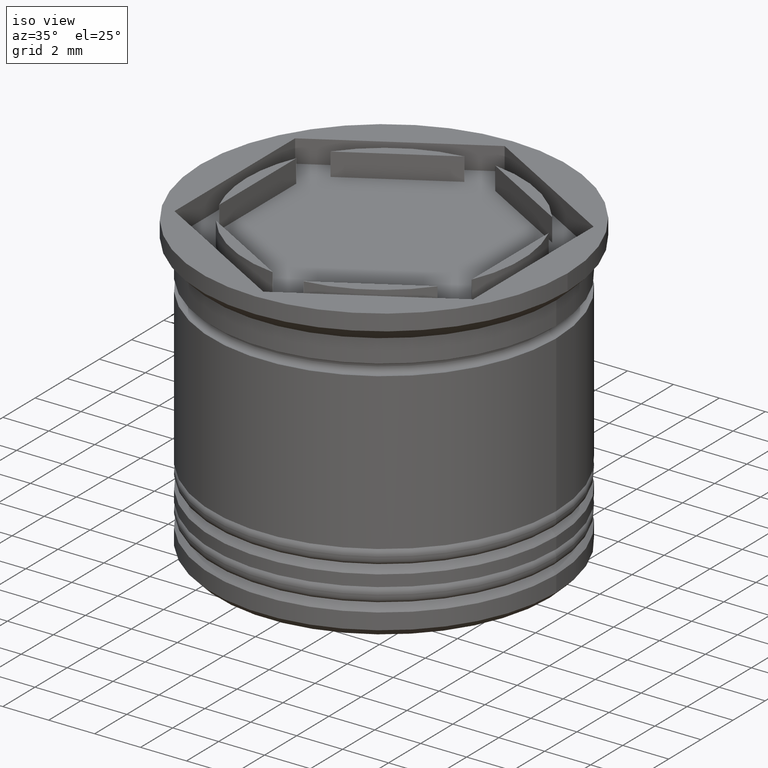
[diagram: clean part render]
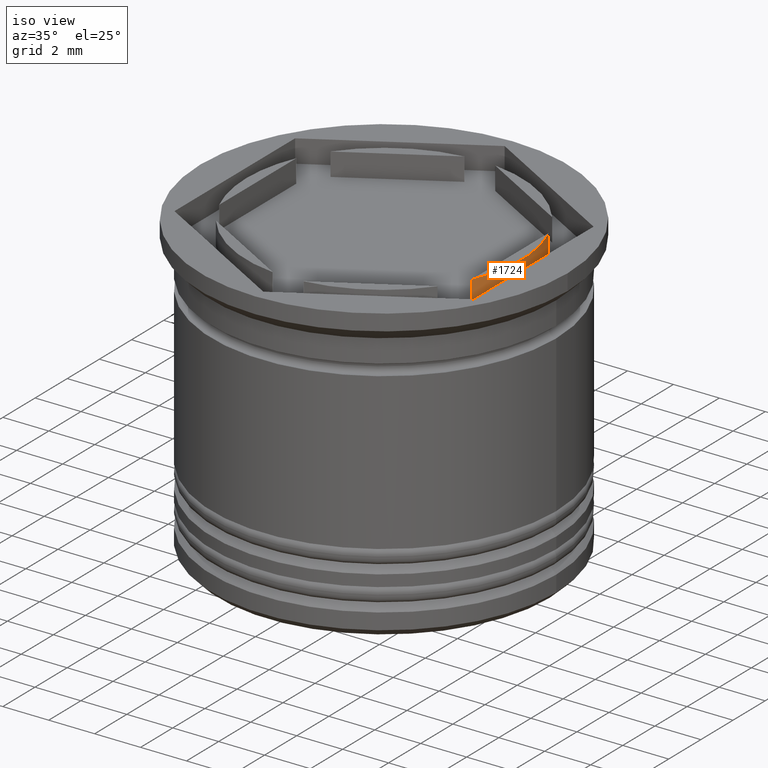
[diagram: same view with one face highlighted and labeled with its STEP entity id]
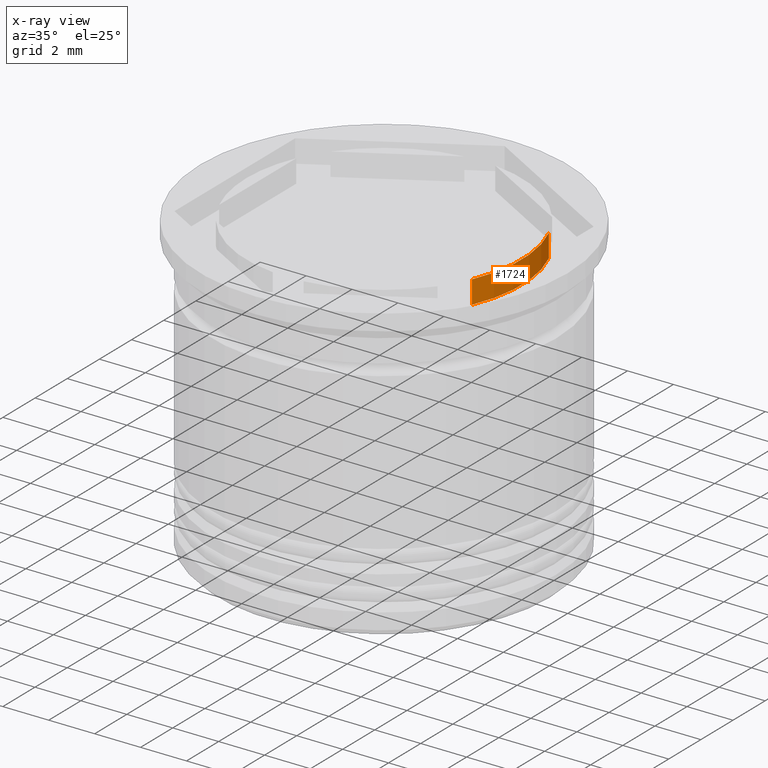
[diagram: x-ray of the same camera — body ghosted, the highlighted face saturated]
A machine part, iso view. The second image highlights one B-rep face of the part: STEP entity #1724.
The next image is the same camera in x-ray: the body ghosted, the highlighted face saturated — about 0% of this face is hidden behind the body in this view.
In plain terms, the highlighted cylindrical surface (partial cylindrical patch) has radius 6 mm, axis along (-0, -0, -1).
Its self-contained STEP definition (entity closure, byte-faithful):
#58 = CARTESIAN_POINT ( 'NONE',  ( 5.500000000000000888, 2.397915761656360445, -1.000000000000000888 ) ) ;
#186 = CARTESIAN_POINT ( 'NONE',  ( 5.500000000000000888, -2.397915761656362221, -1.000000000000000888 ) ) ;
#188 = LINE ( 'NONE', #1139, #1171 ) ;
#191 = EDGE_CURVE ( 'NONE', #322, #525, #188, .T. ) ;
#217 = CARTESIAN_POINT ( 'NONE',  ( 0.000000000000000000, 0.000000000000000000, -1.000000000000000000 ) ) ;
#230 = DIRECTION ( 'NONE',  ( -0.000000000000000000, -0.000000000000000000, 1.000000000000000000 ) ) ;
#284 = AXIS2_PLACEMENT_3D ( 'NONE', #1007, #1916, #716 ) ;
#322 = VERTEX_POINT ( 'NONE', #58 ) ;
#351 = CARTESIAN_POINT ( 'NONE',  ( 5.500000000000000888, -2.397915761656362221, 0.000000000000000000 ) ) ;
#439 = EDGE_LOOP ( 'NONE', ( #1065, #734, #1096, #1849 ) ) ;
#503 = DIRECTION ( 'NONE',  ( 1.000000000000000000, 0.000000000000000000, 0.000000000000000000 ) ) ;
#512 = CARTESIAN_POINT ( 'NONE',  ( 0.000000000000000000, 0.000000000000000000, 0.000000000000000000 ) ) ;
#525 = VERTEX_POINT ( 'NONE', #1160 ) ;
#624 = DIRECTION ( 'NONE',  ( 0.000000000000000000, 0.000000000000000000, 1.000000000000000000 ) ) ;
#681 = FACE_OUTER_BOUND ( 'NONE', #439, .T. ) ;
#696 = EDGE_CURVE ( 'NONE', #1034, #525, #1522, .T. ) ;
#716 = DIRECTION ( 'NONE',  ( -1.000000000000000000, 0.000000000000000000, 0.000000000000000000 ) ) ;
#734 = ORIENTED_EDGE ( 'NONE', *, *, #1897, .T. ) ;
#826 = DIRECTION ( 'NONE',  ( -0.000000000000000000, -0.000000000000000000, -1.000000000000000000 ) ) ;
#834 = AXIS2_PLACEMENT_3D ( 'NONE', #512, #230, #503 ) ;
#893 = VERTEX_POINT ( 'NONE', #186 ) ;
#1007 = CARTESIAN_POINT ( 'NONE',  ( 0.000000000000000000, 0.000000000000000000, 16.97056274847714263 ) ) ;
#1034 = VERTEX_POINT ( 'NONE', #351 ) ;
#1065 = ORIENTED_EDGE ( 'NONE', *, *, #696, .F. ) ;
#1096 = ORIENTED_EDGE ( 'NONE', *, *, #1909, .T. ) ;
#1135 = CIRCLE ( 'NONE', #1458, 6.000000000000000888 ) ;
#1139 = CARTESIAN_POINT ( 'NONE',  ( 5.500000000000000888, 2.397915761656360445, 16.97056274847714263 ) ) ;
#1160 = CARTESIAN_POINT ( 'NONE',  ( 5.500000000000001776, 2.397915761656360445, 0.000000000000000000 ) ) ;
#1171 = VECTOR ( 'NONE', #624, 1000.000000000000000 ) ;
#1185 = CYLINDRICAL_SURFACE ( 'NONE', #284, 6.000000000000000888 ) ;
#1303 = DIRECTION ( 'NONE',  ( 0.000000000000000000, 0.000000000000000000, 1.000000000000000000 ) ) ;
#1428 = LINE ( 'NONE', #1591, #1713 ) ;
#1458 = AXIS2_PLACEMENT_3D ( 'NONE', #217, #1303, #1898 ) ;
#1522 = CIRCLE ( 'NONE', #834, 6.000000000000000888 ) ;
#1591 = CARTESIAN_POINT ( 'NONE',  ( 5.500000000000000888, -2.397915761656362221, 16.97056274847714263 ) ) ;
#1713 = VECTOR ( 'NONE', #826, 1000.000000000000000 ) ;
#1724 = ADVANCED_FACE ( 'NONE', ( #681 ), #1185, .T. ) ;
#1849 = ORIENTED_EDGE ( 'NONE', *, *, #191, .T. ) ;
#1897 = EDGE_CURVE ( 'NONE', #1034, #893, #1428, .T. ) ;
#1898 = DIRECTION ( 'NONE',  ( 1.000000000000000000, 0.000000000000000000, 0.000000000000000000 ) ) ;
#1909 = EDGE_CURVE ( 'NONE', #893, #322, #1135, .T. ) ;
#1916 = DIRECTION ( 'NONE',  ( -0.000000000000000000, -0.000000000000000000, -1.000000000000000000 ) ) ;